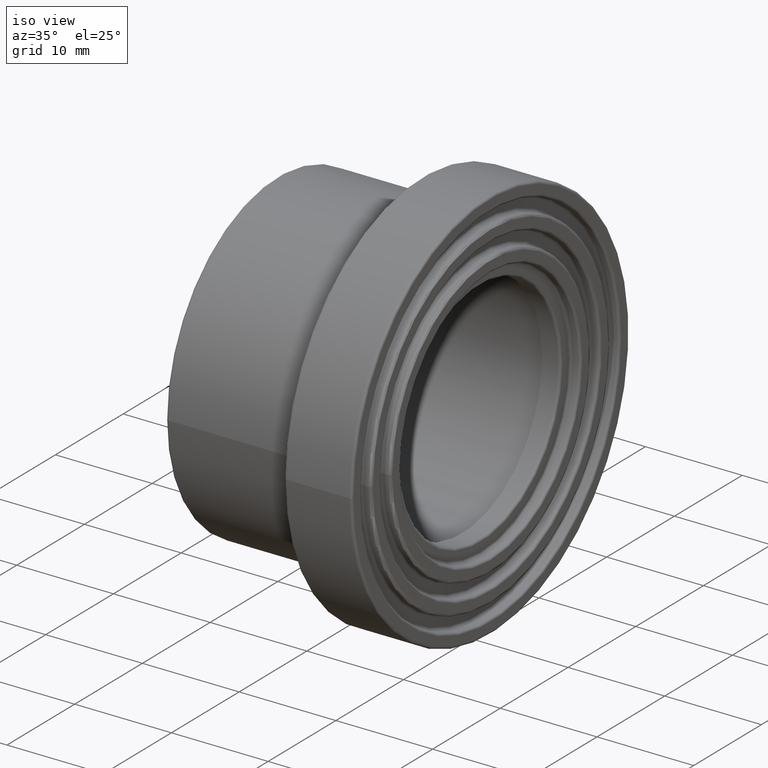
[diagram: clean part render]
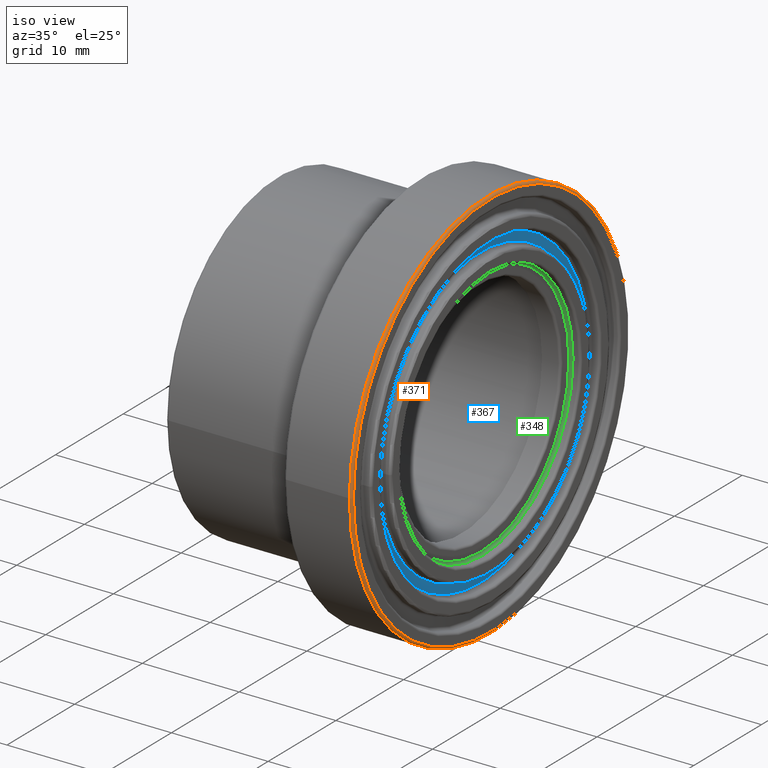
[diagram: same view with three faces highlighted in distinct colors, each labeled with its STEP entity id]
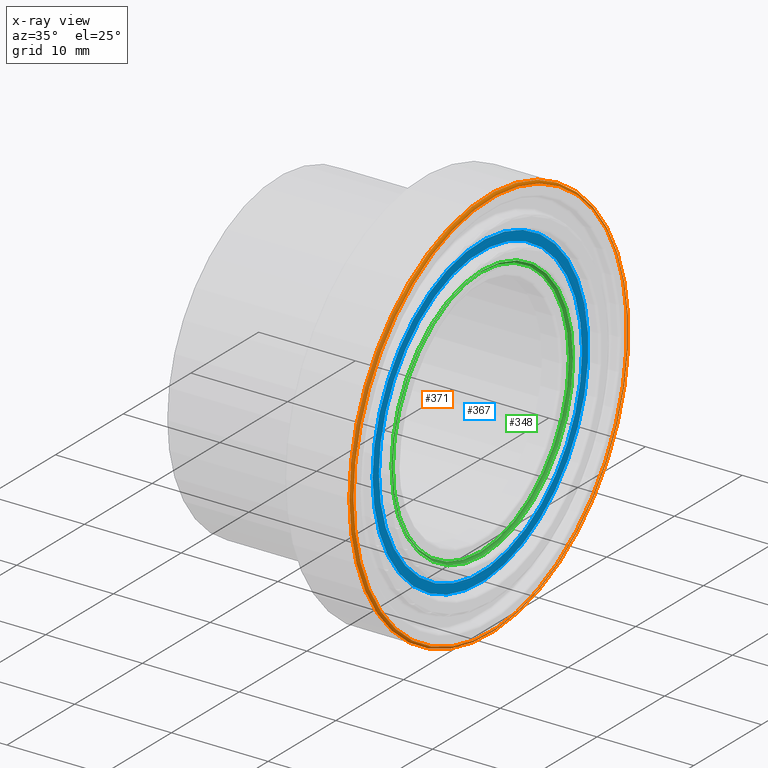
[diagram: x-ray of the same camera — body ghosted, the three highlighted faces saturated]
A machine part, iso view with three faces highlighted in distinct colors.
The next image is the same camera in x-ray (body ghosted, the three faces saturated) — at least one of them is partly hidden behind the body in this view.
Their STEP definitions:

[orange] entity #371 — the highlighted toroidal blend (fillet) surface has major radius 20.25 mm and minor (blend) radius 0.25 mm.
#59=FACE_BOUND('',#152,.T.);
#92=FACE_OUTER_BOUND('',#151,.T.);
#151=EDGE_LOOP('',(#316));
#152=EDGE_LOOP('',(#317));
#176=CIRCLE('',#401,20.25);
#193=CIRCLE('',#435,20.5);
#209=VERTEX_POINT('',#613);
#226=VERTEX_POINT('',#664);
#242=EDGE_CURVE('',#209,#209,#176,.T.);
#259=EDGE_CURVE('',#226,#226,#193,.T.);
#316=ORIENTED_EDGE('',*,*,#242,.T.);
#317=ORIENTED_EDGE('',*,*,#259,.T.);
#342=TOROIDAL_SURFACE('',#434,20.25,0.25);
#371=ADVANCED_FACE('',(#92,#59),#342,.T.);
#401=AXIS2_PLACEMENT_3D('',#614,#490,#491);
#434=AXIS2_PLACEMENT_3D('',#663,#556,#557);
#435=AXIS2_PLACEMENT_3D('',#665,#558,#559);
#490=DIRECTION('center_axis',(-1.,0.,0.));
#491=DIRECTION('ref_axis',(0.,1.,6.12323399573677E-17));
#556=DIRECTION('center_axis',(-1.,0.,0.));
#557=DIRECTION('ref_axis',(0.,0.,1.));
#558=DIRECTION('center_axis',(1.,0.,0.));
#559=DIRECTION('ref_axis',(0.,1.,6.12323399573677E-17));
#613=CARTESIAN_POINT('',(22.,-20.25,1.2399548841367E-15));
#614=CARTESIAN_POINT('Origin',(22.,0.,0.));
#663=CARTESIAN_POINT('Origin',(21.75,0.,0.));
#664=CARTESIAN_POINT('',(21.75,-20.5,-3.76578890737811E-15));
#665=CARTESIAN_POINT('Origin',(21.75,0.,0.));

[blue] entity #367 — the highlighted planar face has unit normal (1, 0, 0).
#30=PLANE('',#427);
#55=FACE_BOUND('',#144,.T.);
#88=FACE_OUTER_BOUND('',#143,.T.);
#143=EDGE_LOOP('',(#308));
#144=EDGE_LOOP('',(#309));
#189=CIRCLE('',#426,15.);
#190=CIRCLE('',#428,15.9375);
#222=VERTEX_POINT('',#651);
#223=VERTEX_POINT('',#654);
#255=EDGE_CURVE('',#222,#222,#189,.T.);
#256=EDGE_CURVE('',#223,#223,#190,.T.);
#308=ORIENTED_EDGE('',*,*,#256,.F.);
#309=ORIENTED_EDGE('',*,*,#255,.F.);
#367=ADVANCED_FACE('',(#88,#55),#30,.T.);
#426=AXIS2_PLACEMENT_3D('',#652,#540,#541);
#427=AXIS2_PLACEMENT_3D('',#653,#542,#543);
#428=AXIS2_PLACEMENT_3D('',#655,#544,#545);
#540=DIRECTION('center_axis',(1.,0.,0.));
#541=DIRECTION('ref_axis',(0.,1.,6.12323399573677E-17));
#542=DIRECTION('center_axis',(1.,0.,0.));
#543=DIRECTION('ref_axis',(0.,0.,-1.));
#544=DIRECTION('center_axis',(-1.,0.,0.));
#545=DIRECTION('ref_axis',(0.,1.,6.12323399573677E-17));
#651=CARTESIAN_POINT('',(20.95,-15.,-2.75545529808154E-15));
#652=CARTESIAN_POINT('Origin',(20.95,0.,0.));
#653=CARTESIAN_POINT('Origin',(20.95,-16.1875,0.));
#654=CARTESIAN_POINT('',(20.95,-15.9375,9.75890418070547E-16));
#655=CARTESIAN_POINT('Origin',(20.95,0.,0.));

[green] entity #348 — the highlighted toroidal blend (fillet) surface has major radius 13.0625 mm and minor (blend) radius 0.25 mm.
#36=FACE_BOUND('',#106,.T.);
#69=FACE_OUTER_BOUND('',#105,.T.);
#105=EDGE_LOOP('',(#270));
#106=EDGE_LOOP('',(#271));
#167=CIRCLE('',#384,13.0625);
#169=CIRCLE('',#388,13.3125);
#200=VERTEX_POINT('',#587);
#202=VERTEX_POINT('',#593);
#233=EDGE_CURVE('',#200,#200,#167,.T.);
#235=EDGE_CURVE('',#202,#202,#169,.T.);
#270=ORIENTED_EDGE('',*,*,#233,.T.);
#271=ORIENTED_EDGE('',*,*,#235,.T.);
#331=TOROIDAL_SURFACE('',#387,13.0625,0.25);
#348=ADVANCED_FACE('',(#69,#36),#331,.F.);
#384=AXIS2_PLACEMENT_3D('',#588,#456,#457);
#387=AXIS2_PLACEMENT_3D('',#592,#462,#463);
#388=AXIS2_PLACEMENT_3D('',#594,#464,#465);
#456=DIRECTION('center_axis',(-1.,0.,0.));
#457=DIRECTION('ref_axis',(0.,1.,6.12323399573676E-17));
#462=DIRECTION('center_axis',(-1.,0.,0.));
#463=DIRECTION('ref_axis',(0.,0.,1.));
#464=DIRECTION('center_axis',(1.,0.,0.));
#465=DIRECTION('ref_axis',(0.,1.,6.12323399573677E-17));
#587=CARTESIAN_POINT('',(20.95,-13.0625,7.99847440693115E-16));
#588=CARTESIAN_POINT('Origin',(20.95,0.,0.));
#592=CARTESIAN_POINT('Origin',(21.2,0.,0.));
#593=CARTESIAN_POINT('',(21.2,-13.3125,-2.44546657704737E-15));
#594=CARTESIAN_POINT('Origin',(21.2,0.,0.));